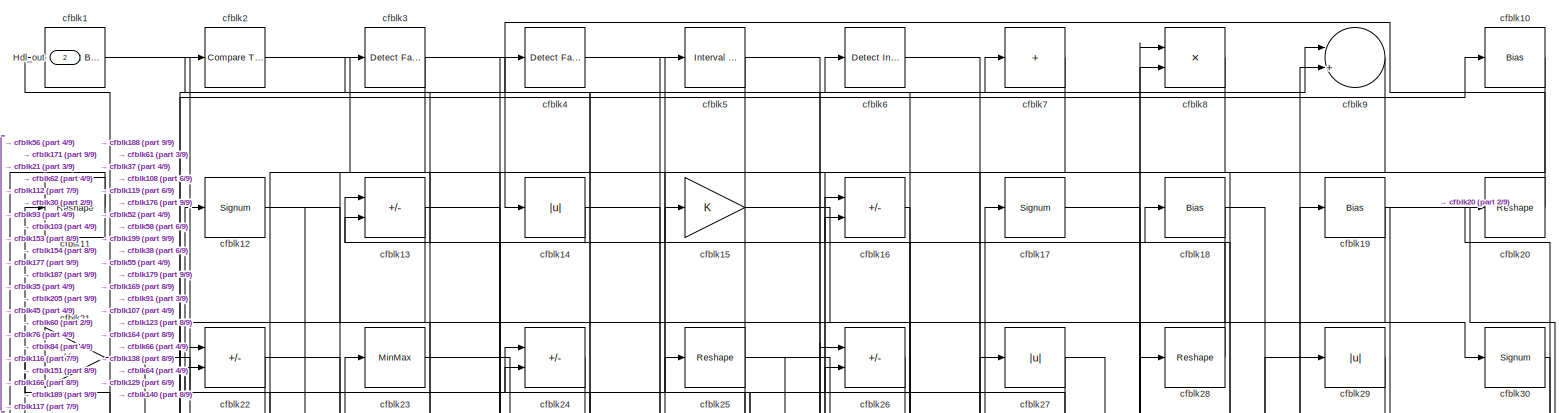
[diagram: root canvas - part 1/9, full width, top band]
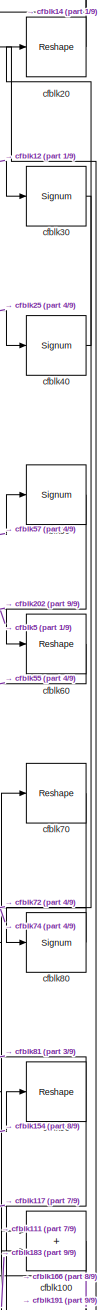
[diagram: root canvas - part 2/9, top right region]
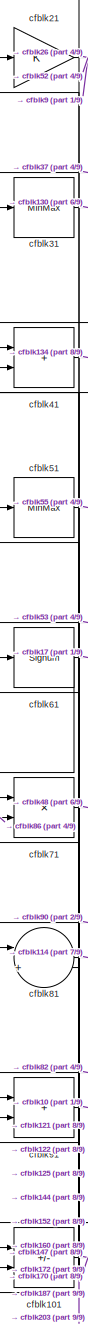
[diagram: root canvas - part 3/9, top left region]
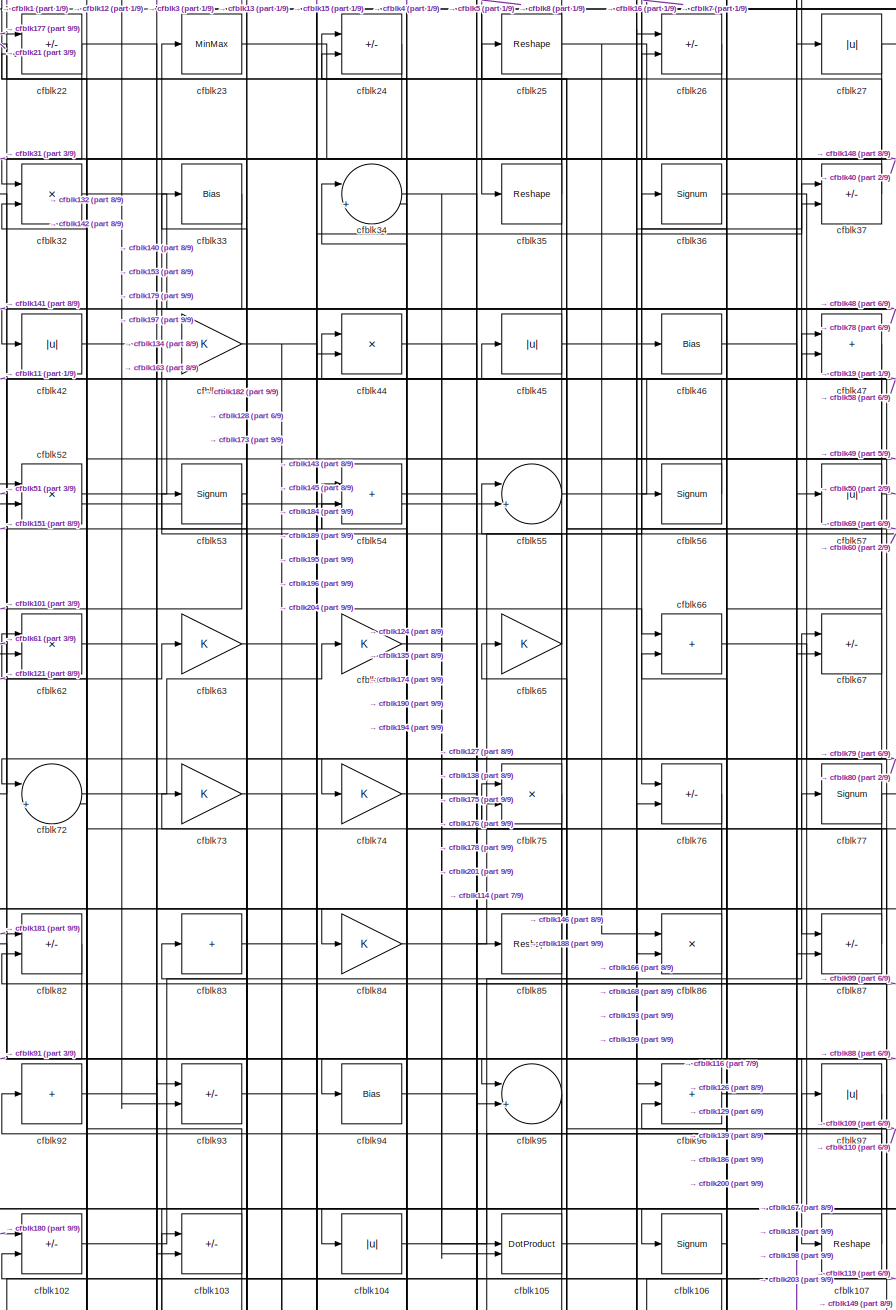
[diagram: root canvas - part 4/9, top center region]
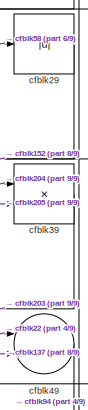
[diagram: root canvas - part 5/9, top right region]
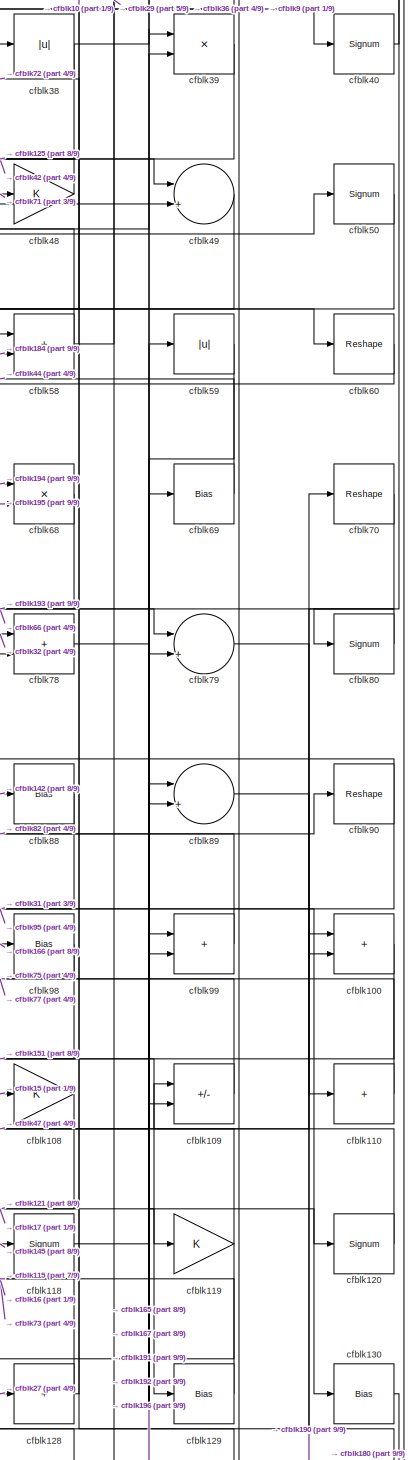
[diagram: root canvas - part 6/9, middle right region]
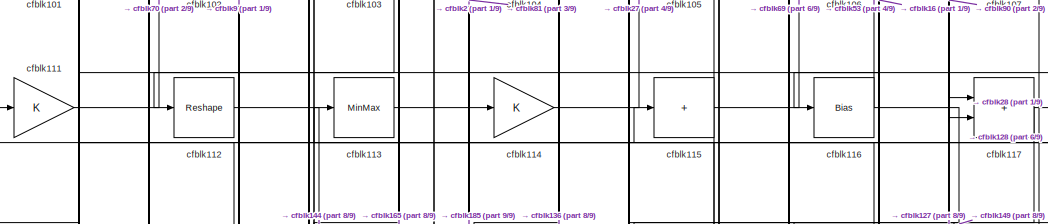
[diagram: root canvas - part 7/9, central region]
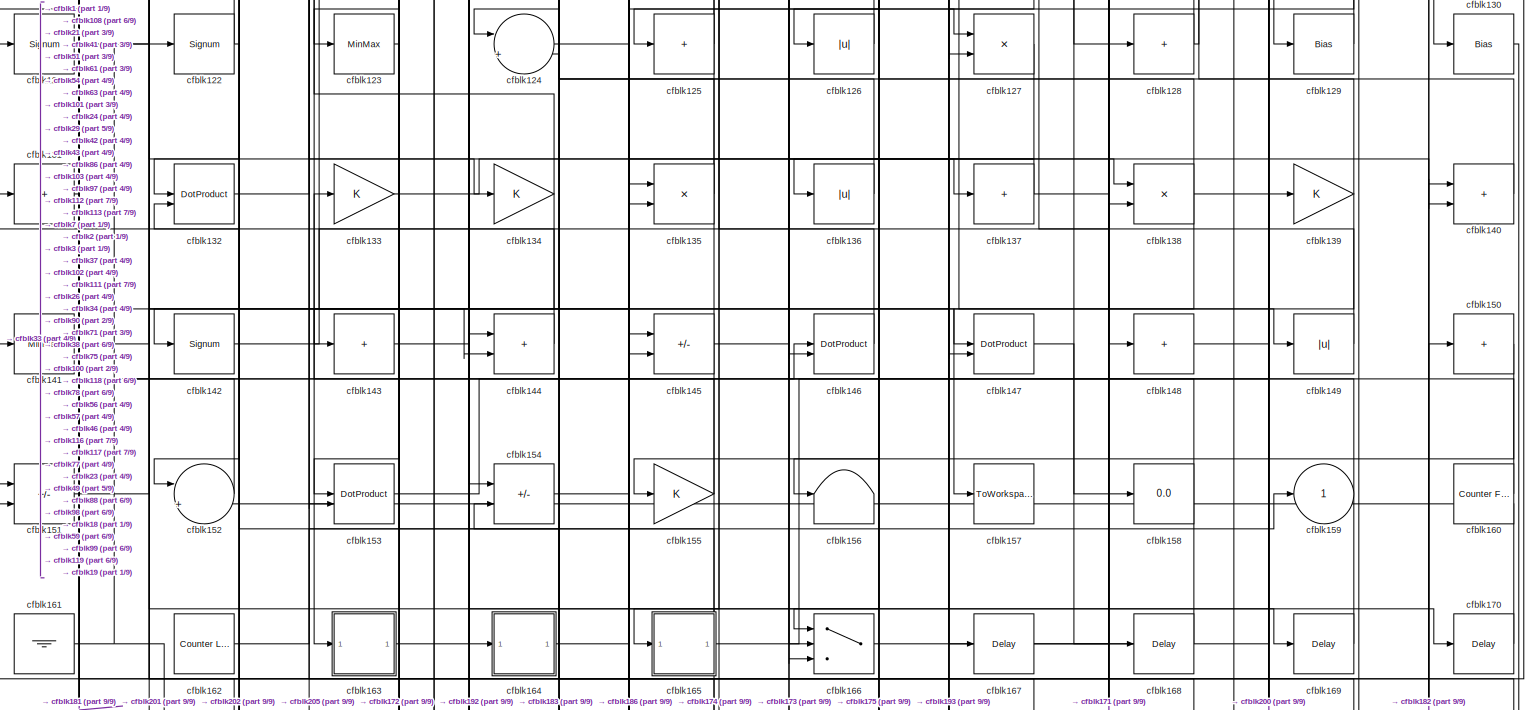
[diagram: root canvas - part 8/9, full width, bottom band]
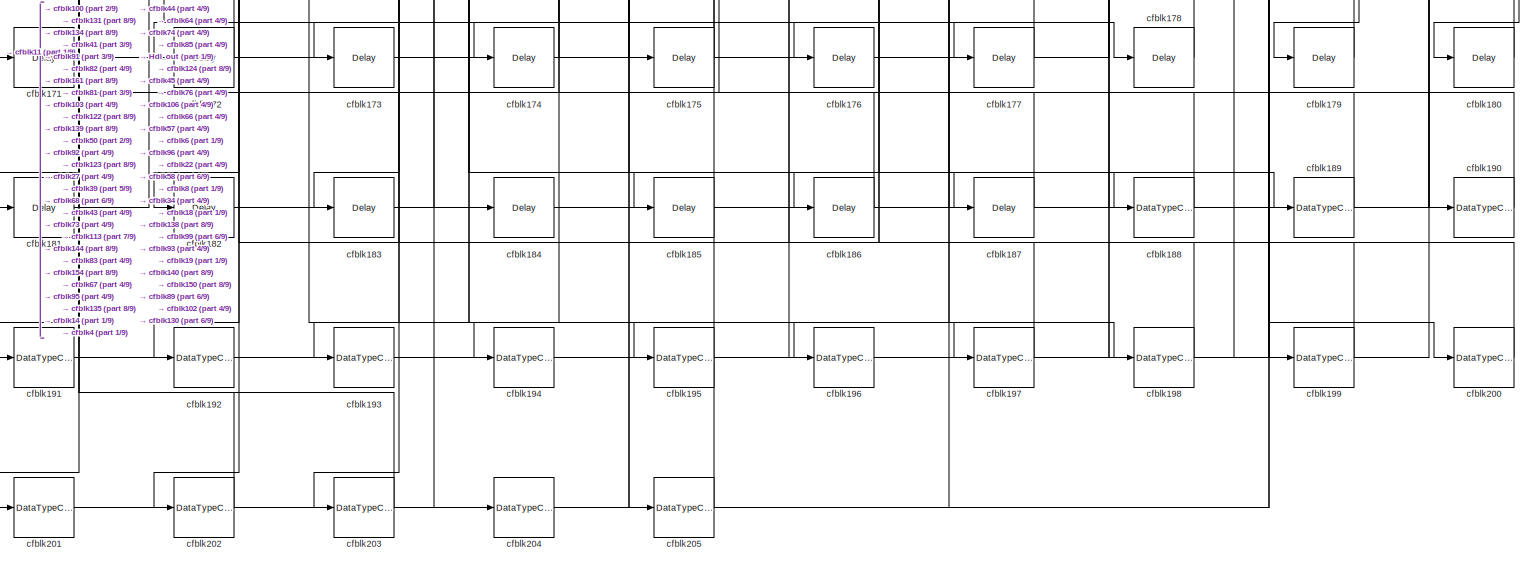
[diagram: root canvas - part 9/9, full width, bottom band]
MODEL slx_56539f601b3c
KIND model
CONFIG AbsTol = auto
CONFIG EnableMultiTasking = off
CONFIG FixedStep = auto
CONFIG MaxStep = auto
CONFIG MinStep = auto
CONFIG RelTol = 1e-3
CONFIG SampleTimeConstraint = Unconstrained
CONFIG SolverName = VariableStepAuto
CONFIG StartTime = 0.0
CONFIG StopTime = 10.0
BLOCK [Outport] Hdl_out
  OutDataTypeStr = uint8
  Port = 2
BLOCK [Reference] cfblk1  REF=simulink/Logic and Bit
Operations/Extract Bits
  LibrarySourceBlock = hdlsllib/Logic and Bit\nOperations/Extract Bits
  SourceBlock = simulink/Logic and Bit\nOperations/Extract Bits
  SourceType = Extract Bits
BLOCK [Bias] cfblk10
  Bias = 0.0
  SaturateOnIntegerOverflow = off
BLOCK [Sum] cfblk100
  IconShape = rectangular
  OutDataTypeStr = uint8
BLOCK [Sum] cfblk101
  IconShape = rectangular
  Inputs = +-
  OutDataTypeStr = uint8
BLOCK [Sum] cfblk102
  IconShape = rectangular
  Inputs = +-
  OutDataTypeStr = uint8
BLOCK [Sum] cfblk103
  IconShape = rectangular
  Inputs = +-
  OutDataTypeStr = uint8
BLOCK [Abs] cfblk104
  OutDataTypeStr = uint8
  SaturateOnIntegerOverflow = off
BLOCK [DotProduct] cfblk105
  OutDataTypeStr = uint8
BLOCK [Signum] cfblk106
BLOCK [Reshape] cfblk107
BLOCK [Gain] cfblk108
  OutDataTypeStr = uint8
BLOCK [Sum] cfblk109
  IconShape = rectangular
  Inputs = +-
  OutDataTypeStr = uint8
BLOCK [Reshape] cfblk11
BLOCK [Sum] cfblk110
  IconShape = rectangular
  Inputs = +
  OutDataTypeStr = uint8
BLOCK [Gain] cfblk111
  OutDataTypeStr = uint8
BLOCK [Reshape] cfblk112
BLOCK [MinMax] cfblk113
  OutDataTypeStr = uint8
BLOCK [Gain] cfblk114
  OutDataTypeStr = uint8
BLOCK [Sum] cfblk115
  IconShape = rectangular
  Inputs = +
  OutDataTypeStr = uint8
BLOCK [Bias] cfblk116
  Bias = 0.0
  SaturateOnIntegerOverflow = off
BLOCK [Sum] cfblk117
  IconShape = rectangular
  OutDataTypeStr = uint8
BLOCK [Signum] cfblk118
BLOCK [Gain] cfblk119
  OutDataTypeStr = uint8
BLOCK [Signum] cfblk12
BLOCK [Signum] cfblk120
BLOCK [Signum] cfblk121
BLOCK [Signum] cfblk122
BLOCK [MinMax] cfblk123
  OutDataTypeStr = uint8
BLOCK [Sum] cfblk124
  Inputs = |++
  OutDataTypeStr = uint8
BLOCK [Sum] cfblk125
  IconShape = rectangular
  Inputs = +
  OutDataTypeStr = uint8
BLOCK [Abs] cfblk126
  OutDataTypeStr = uint8
  SaturateOnIntegerOverflow = off
BLOCK [Product] cfblk127
  Inputs = */
  OutDataTypeStr = uint8
  RndMeth = Zero
  SaturateOnIntegerOverflow = on
BLOCK [Sum] cfblk128
  IconShape = rectangular
  Inputs = +
  OutDataTypeStr = uint8
BLOCK [Bias] cfblk129
  Bias = 0.0
  SaturateOnIntegerOverflow = off
BLOCK [Sum] cfblk13
  IconShape = rectangular
  Inputs = +-
  OutDataTypeStr = uint8
BLOCK [Bias] cfblk130
  Bias = 0.0
  SaturateOnIntegerOverflow = off
BLOCK [Sum] cfblk131
  IconShape = rectangular
  Inputs = +
  OutDataTypeStr = uint8
BLOCK [DotProduct] cfblk132
  OutDataTypeStr = uint8
BLOCK [Gain] cfblk133
  OutDataTypeStr = uint8
BLOCK [Gain] cfblk134
  OutDataTypeStr = uint8
BLOCK [Product] cfblk135
  Inputs = */
  OutDataTypeStr = uint8
  RndMeth = Zero
  SaturateOnIntegerOverflow = on
BLOCK [Abs] cfblk136
  OutDataTypeStr = uint8
  SaturateOnIntegerOverflow = off
BLOCK [Sum] cfblk137
  IconShape = rectangular
  Inputs = +
  OutDataTypeStr = uint8
BLOCK [Product] cfblk138
  Inputs = */
  OutDataTypeStr = uint8
  RndMeth = Zero
  SaturateOnIntegerOverflow = on
BLOCK [Gain] cfblk139
  OutDataTypeStr = uint8
BLOCK [Abs] cfblk14
  OutDataTypeStr = uint8
  SaturateOnIntegerOverflow = off
BLOCK [Sum] cfblk140
  IconShape = rectangular
  OutDataTypeStr = uint8
BLOCK [MinMax] cfblk141
  OutDataTypeStr = uint8
BLOCK [Signum] cfblk142
BLOCK [Sum] cfblk143
  IconShape = rectangular
  Inputs = +
  OutDataTypeStr = uint8
BLOCK [Sum] cfblk144
  IconShape = rectangular
  OutDataTypeStr = uint8
BLOCK [Sum] cfblk145
  IconShape = rectangular
  Inputs = +-
  OutDataTypeStr = uint8
BLOCK [DotProduct] cfblk146
  OutDataTypeStr = uint8
BLOCK [DotProduct] cfblk147
  OutDataTypeStr = uint8
BLOCK [Sum] cfblk148
  IconShape = rectangular
  Inputs = +
  OutDataTypeStr = uint8
BLOCK [Abs] cfblk149
  OutDataTypeStr = uint8
  SaturateOnIntegerOverflow = off
BLOCK [Gain] cfblk15
  OutDataTypeStr = uint8
BLOCK [Sum] cfblk150
  IconShape = rectangular
  Inputs = +
  OutDataTypeStr = uint8
BLOCK [Sum] cfblk151
  IconShape = rectangular
  Inputs = +-
  OutDataTypeStr = uint8
BLOCK [Sum] cfblk152
  Inputs = |++
  OutDataTypeStr = uint8
BLOCK [DotProduct] cfblk153
  OutDataTypeStr = uint8
BLOCK [Sum] cfblk154
  IconShape = rectangular
  Inputs = +-
  OutDataTypeStr = uint8
BLOCK [Gain] cfblk155
  OutDataTypeStr = uint8
BLOCK [Terminator] cfblk156
BLOCK [ToWorkspace] cfblk157
  MaxDataPoints = inf
  SampleTime = -1
  SaveFormat = Timeseries
  VariableName = simout
BLOCK [Display] cfblk158
  Decimation = 1
BLOCK [Outport] cfblk159
  OutDataTypeStr = uint8
  VectorParamsAs1DForOutWhenUnconnected = off
BLOCK [Sum] cfblk16
  IconShape = rectangular
  Inputs = +-
  OutDataTypeStr = uint8
BLOCK [Reference] cfblk160  REF=hdlsllib/Sources/Counter
Free-Running
  SourceBlock = hdlsllib/Sources/Counter\nFree-Running
  SourceType = Counter Free-Running
BLOCK [Ground] cfblk161
BLOCK [Reference] cfblk162  REF=hdlsllib/Sources/Counter
Limited
  SourceBlock = hdlsllib/Sources/Counter\nLimited
  SourceType = Counter Limited
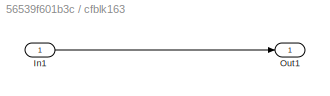
BLOCK [SubSystem] cfblk163
  LibrarySourceBlock = hdlsllib/Ports &\nSubsystems/Subsystem
BLOCK [Inport] cfblk163/In1
BLOCK [Outport] cfblk163/Out1
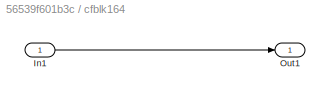
BLOCK [SubSystem] cfblk164
  LibrarySourceBlock = hdlsllib/Ports &\nSubsystems/Subsystem
BLOCK [Inport] cfblk164/In1
BLOCK [Outport] cfblk164/Out1
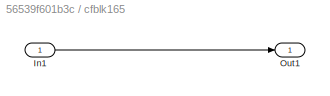
BLOCK [SubSystem] cfblk165
  LibrarySourceBlock = hdlsllib/Ports &\nSubsystems/Subsystem
BLOCK [Inport] cfblk165/In1
BLOCK [Outport] cfblk165/Out1
BLOCK [Switch] cfblk166
  InputSameDT = off
  OutDataTypeStr = uint8
  SaturateOnIntegerOverflow = off
BLOCK [Delay] cfblk167
  InputPortMap = u0
  SampleTime = 1
BLOCK [Delay] cfblk168
  InputPortMap = u0
  SampleTime = 1
BLOCK [Delay] cfblk169
  InputPortMap = u0
  SampleTime = 1
BLOCK [Signum] cfblk17
BLOCK [Delay] cfblk170
  InputPortMap = u0
  SampleTime = 1
BLOCK [Delay] cfblk171
  InputPortMap = u0
  SampleTime = 1
BLOCK [Delay] cfblk172
  InputPortMap = u0
  SampleTime = 1
BLOCK [Delay] cfblk173
  InputPortMap = u0
  SampleTime = 1
BLOCK [Delay] cfblk174
  InputPortMap = u0
  SampleTime = 1
BLOCK [Delay] cfblk175
  InputPortMap = u0
  SampleTime = 1
BLOCK [Delay] cfblk176
  InputPortMap = u0
  SampleTime = 1
BLOCK [Delay] cfblk177
  InputPortMap = u0
  SampleTime = 1
BLOCK [Delay] cfblk178
  InputPortMap = u0
  SampleTime = 1
BLOCK [Delay] cfblk179
  InputPortMap = u0
  SampleTime = 1
BLOCK [Bias] cfblk18
  Bias = 0.0
  SaturateOnIntegerOverflow = off
BLOCK [Delay] cfblk180
  InputPortMap = u0
  SampleTime = 1
BLOCK [Delay] cfblk181
  InputPortMap = u0
  SampleTime = 1
BLOCK [Delay] cfblk182
  InputPortMap = u0
  SampleTime = 1
BLOCK [Delay] cfblk183
  InputPortMap = u0
  SampleTime = 1
BLOCK [Delay] cfblk184
  InputPortMap = u0
  SampleTime = 1
BLOCK [Delay] cfblk185
  InputPortMap = u0
  SampleTime = 1
BLOCK [Delay] cfblk186
  InputPortMap = u0
  SampleTime = 1
BLOCK [Delay] cfblk187
  InputPortMap = u0
  SampleTime = 1
BLOCK [DataTypeConversion] cfblk188
  OutDataTypeStr = uint8
  RndMeth = Floor
  SaturateOnIntegerOverflow = off
BLOCK [DataTypeConversion] cfblk189
  OutDataTypeStr = uint8
  RndMeth = Floor
  SaturateOnIntegerOverflow = off
BLOCK [Bias] cfblk19
  Bias = 0.0
  SaturateOnIntegerOverflow = off
BLOCK [DataTypeConversion] cfblk190
  OutDataTypeStr = uint8
  RndMeth = Floor
  SaturateOnIntegerOverflow = off
BLOCK [DataTypeConversion] cfblk191
  OutDataTypeStr = uint8
  RndMeth = Floor
  SaturateOnIntegerOverflow = off
BLOCK [DataTypeConversion] cfblk192
  OutDataTypeStr = uint8
  RndMeth = Floor
  SaturateOnIntegerOverflow = off
BLOCK [DataTypeConversion] cfblk193
  OutDataTypeStr = uint8
  RndMeth = Floor
  SaturateOnIntegerOverflow = off
BLOCK [DataTypeConversion] cfblk194
  OutDataTypeStr = uint8
  RndMeth = Floor
  SaturateOnIntegerOverflow = off
BLOCK [DataTypeConversion] cfblk195
  OutDataTypeStr = uint8
  RndMeth = Floor
  SaturateOnIntegerOverflow = off
BLOCK [DataTypeConversion] cfblk196
  OutDataTypeStr = uint8
  RndMeth = Floor
  SaturateOnIntegerOverflow = off
BLOCK [DataTypeConversion] cfblk197
  OutDataTypeStr = uint8
  RndMeth = Floor
  SaturateOnIntegerOverflow = off
BLOCK [DataTypeConversion] cfblk198
  OutDataTypeStr = uint8
  RndMeth = Floor
  SaturateOnIntegerOverflow = off
BLOCK [DataTypeConversion] cfblk199
  OutDataTypeStr = uint8
  RndMeth = Floor
  SaturateOnIntegerOverflow = off
BLOCK [Reference] cfblk2  REF=hdlsllib/Logic and Bit
Operations/Compare
To Constant
  SourceBlock = hdlsllib/Logic and Bit\nOperations/Compare\nTo Constant
  SourceType = Compare To Constant
BLOCK [Reshape] cfblk20
BLOCK [DataTypeConversion] cfblk200
  OutDataTypeStr = uint8
  RndMeth = Floor
  SaturateOnIntegerOverflow = off
BLOCK [DataTypeConversion] cfblk201
  OutDataTypeStr = uint8
  RndMeth = Floor
  SaturateOnIntegerOverflow = off
BLOCK [DataTypeConversion] cfblk202
  OutDataTypeStr = uint8
  RndMeth = Floor
  SaturateOnIntegerOverflow = off
BLOCK [DataTypeConversion] cfblk203
  OutDataTypeStr = uint8
  RndMeth = Floor
  SaturateOnIntegerOverflow = off
BLOCK [DataTypeConversion] cfblk204
  OutDataTypeStr = uint8
  RndMeth = Floor
  SaturateOnIntegerOverflow = off
BLOCK [DataTypeConversion] cfblk205
  OutDataTypeStr = uint8
  RndMeth = Floor
  SaturateOnIntegerOverflow = off
BLOCK [Gain] cfblk21
  OutDataTypeStr = uint8
BLOCK [Sum] cfblk22
  IconShape = rectangular
  Inputs = +-
  OutDataTypeStr = uint8
BLOCK [MinMax] cfblk23
  OutDataTypeStr = uint8
BLOCK [Sum] cfblk24
  IconShape = rectangular
  Inputs = +-
  OutDataTypeStr = uint8
BLOCK [Reshape] cfblk25
BLOCK [Sum] cfblk26
  IconShape = rectangular
  Inputs = +-
  OutDataTypeStr = uint8
BLOCK [Abs] cfblk27
  OutDataTypeStr = uint8
  SaturateOnIntegerOverflow = off
BLOCK [Reshape] cfblk28
BLOCK [Abs] cfblk29
  OutDataTypeStr = uint8
  SaturateOnIntegerOverflow = off
BLOCK [Reference] cfblk3  REF=hdlsllib/Logic and Bit
Operations/Detect Fall
Negative
  SourceBlock = hdlsllib/Logic and Bit\nOperations/Detect Fall\nNegative
  SourceType = Detect Fall Negative
BLOCK [Signum] cfblk30
BLOCK [MinMax] cfblk31
  OutDataTypeStr = uint8
BLOCK [Product] cfblk32
  Inputs = */
  OutDataTypeStr = uint8
  RndMeth = Zero
  SaturateOnIntegerOverflow = on
BLOCK [Bias] cfblk33
  Bias = 0.0
  SaturateOnIntegerOverflow = off
BLOCK [Sum] cfblk34
  Inputs = |++
  OutDataTypeStr = uint8
BLOCK [Reshape] cfblk35
BLOCK [Signum] cfblk36
BLOCK [Sum] cfblk37
  IconShape = rectangular
  Inputs = +-
  OutDataTypeStr = uint8
BLOCK [Abs] cfblk38
  OutDataTypeStr = uint8
  SaturateOnIntegerOverflow = off
BLOCK [Product] cfblk39
  Inputs = */
  OutDataTypeStr = uint8
  RndMeth = Zero
  SaturateOnIntegerOverflow = on
BLOCK [Reference] cfblk4  REF=hdlsllib/Logic and Bit
Operations/Detect Fall
Negative
  SourceBlock = hdlsllib/Logic and Bit\nOperations/Detect Fall\nNegative
  SourceType = Detect Fall Negative
BLOCK [Signum] cfblk40
BLOCK [Sum] cfblk41
  IconShape = rectangular
  OutDataTypeStr = uint8
BLOCK [Abs] cfblk42
  OutDataTypeStr = uint8
  SaturateOnIntegerOverflow = off
BLOCK [Gain] cfblk43
  OutDataTypeStr = uint8
BLOCK [Product] cfblk44
  Inputs = */
  OutDataTypeStr = uint8
  RndMeth = Zero
  SaturateOnIntegerOverflow = on
BLOCK [Abs] cfblk45
  OutDataTypeStr = uint8
  SaturateOnIntegerOverflow = off
BLOCK [Bias] cfblk46
  Bias = 0.0
  SaturateOnIntegerOverflow = off
BLOCK [Sum] cfblk47
  IconShape = rectangular
  OutDataTypeStr = uint8
BLOCK [Gain] cfblk48
  OutDataTypeStr = uint8
BLOCK [Sum] cfblk49
  Inputs = |++
  OutDataTypeStr = uint8
BLOCK [Reference] cfblk5  REF=hdlsllib/Logic and Bit
Operations/Interval Test
  SourceBlock = hdlsllib/Logic and Bit\nOperations/Interval Test
  SourceType = Interval Test
BLOCK [Signum] cfblk50
BLOCK [MinMax] cfblk51
  OutDataTypeStr = uint8
BLOCK [Product] cfblk52
  Inputs = */
  OutDataTypeStr = uint8
  RndMeth = Zero
  SaturateOnIntegerOverflow = on
BLOCK [Signum] cfblk53
BLOCK [Sum] cfblk54
  IconShape = rectangular
  OutDataTypeStr = uint8
BLOCK [Sum] cfblk55
  Inputs = |++
  OutDataTypeStr = uint8
BLOCK [Signum] cfblk56
BLOCK [Abs] cfblk57
  OutDataTypeStr = uint8
  SaturateOnIntegerOverflow = off
BLOCK [Sum] cfblk58
  IconShape = rectangular
  OutDataTypeStr = uint8
BLOCK [Abs] cfblk59
  OutDataTypeStr = uint8
  SaturateOnIntegerOverflow = off
BLOCK [Reference] cfblk6  REF=simulink/Logic and Bit
Operations/Detect
Increase
  LibrarySourceBlock = hdlsllib/Logic and Bit\nOperations/Detect\nIncrease
  SourceBlock = simulink/Logic and Bit\nOperations/Detect\nIncrease
  SourceType = Detect Increase
BLOCK [Reshape] cfblk60
BLOCK [Signum] cfblk61
BLOCK [Product] cfblk62
  Inputs = */
  OutDataTypeStr = uint8
  RndMeth = Zero
  SaturateOnIntegerOverflow = on
BLOCK [Gain] cfblk63
  OutDataTypeStr = uint8
BLOCK [Gain] cfblk64
  OutDataTypeStr = uint8
BLOCK [Gain] cfblk65
  OutDataTypeStr = uint8
BLOCK [Sum] cfblk66
  IconShape = rectangular
  OutDataTypeStr = uint8
BLOCK [Sum] cfblk67
  IconShape = rectangular
  Inputs = +-
  OutDataTypeStr = uint8
BLOCK [Product] cfblk68
  Inputs = */
  OutDataTypeStr = uint8
  RndMeth = Zero
  SaturateOnIntegerOverflow = on
BLOCK [Bias] cfblk69
  Bias = 0.0
  SaturateOnIntegerOverflow = off
BLOCK [Sum] cfblk7
  IconShape = rectangular
  Inputs = +
  OutDataTypeStr = uint8
BLOCK [Reshape] cfblk70
BLOCK [Product] cfblk71
  Inputs = */
  OutDataTypeStr = uint8
  RndMeth = Zero
  SaturateOnIntegerOverflow = on
BLOCK [Sum] cfblk72
  Inputs = |++
  OutDataTypeStr = uint8
BLOCK [Gain] cfblk73
  OutDataTypeStr = uint8
BLOCK [Gain] cfblk74
  OutDataTypeStr = uint8
BLOCK [Product] cfblk75
  Inputs = */
  OutDataTypeStr = uint8
  RndMeth = Zero
  SaturateOnIntegerOverflow = on
BLOCK [Sum] cfblk76
  IconShape = rectangular
  Inputs = +-
  OutDataTypeStr = uint8
BLOCK [Signum] cfblk77
BLOCK [Sum] cfblk78
  IconShape = rectangular
  OutDataTypeStr = uint8
BLOCK [Sum] cfblk79
  Inputs = |++
  OutDataTypeStr = uint8
BLOCK [Product] cfblk8
  Inputs = */
  OutDataTypeStr = uint8
  RndMeth = Zero
  SaturateOnIntegerOverflow = on
BLOCK [Signum] cfblk80
BLOCK [Sum] cfblk81
  Inputs = |++
  OutDataTypeStr = uint8
BLOCK [Sum] cfblk82
  IconShape = rectangular
  Inputs = +-
  OutDataTypeStr = uint8
BLOCK [Sum] cfblk83
  IconShape = rectangular
  Inputs = +
  OutDataTypeStr = uint8
BLOCK [Gain] cfblk84
  OutDataTypeStr = uint8
BLOCK [Reshape] cfblk85
BLOCK [Product] cfblk86
  Inputs = */
  OutDataTypeStr = uint8
  RndMeth = Zero
  SaturateOnIntegerOverflow = on
BLOCK [Sum] cfblk87
  IconShape = rectangular
  Inputs = +-
  OutDataTypeStr = uint8
BLOCK [Bias] cfblk88
  Bias = 0.0
  SaturateOnIntegerOverflow = off
BLOCK [Sum] cfblk89
  Inputs = |++
  OutDataTypeStr = uint8
BLOCK [Sum] cfblk9
  Inputs = |++
  OutDataTypeStr = uint8
BLOCK [Reshape] cfblk90
BLOCK [Sum] cfblk91
  IconShape = rectangular
  OutDataTypeStr = uint8
BLOCK [Sum] cfblk92
  IconShape = rectangular
  Inputs = +
  OutDataTypeStr = uint8
BLOCK [Sum] cfblk93
  IconShape = rectangular
  Inputs = +-
  OutDataTypeStr = uint8
BLOCK [Bias] cfblk94
  Bias = 0.0
  SaturateOnIntegerOverflow = off
BLOCK [Sum] cfblk95
  Inputs = |++
  OutDataTypeStr = uint8
BLOCK [Sum] cfblk96
  IconShape = rectangular
  OutDataTypeStr = uint8
BLOCK [Abs] cfblk97
  OutDataTypeStr = uint8
  SaturateOnIntegerOverflow = off
BLOCK [Bias] cfblk98
  Bias = 0.0
  SaturateOnIntegerOverflow = off
BLOCK [Sum] cfblk99
  IconShape = rectangular
  OutDataTypeStr = uint8
NET cfblk100:1 -> cfblk166:3, cfblk191:1
NET cfblk101:1 -> cfblk147:2, cfblk170:1
LINE cfblk102:1 -> cfblk67:1
NET cfblk103:1 -> cfblk182:1, cfblk32:2
LINE cfblk104:1 -> cfblk46:1
LINE cfblk105:1 -> cfblk37:1
LINE cfblk106:1 -> cfblk186:1
LINE cfblk107:1 -> cfblk92:1
LINE cfblk108:1 -> cfblk121:1
LINE cfblk109:1 -> cfblk75:2
LINE cfblk10:1 -> cfblk58:1
LINE cfblk110:1 -> cfblk77:1
LINE cfblk111:1 -> cfblk70:1
LINE cfblk112:1 -> cfblk144:2
LINE cfblk113:1 -> cfblk185:1
LINE cfblk114:1 -> cfblk27:1
LINE cfblk115:1 -> cfblk69:1
NET cfblk116:1 -> cfblk149:1, cfblk53:1
NET cfblk117:1 -> cfblk127:2, cfblk28:1
LINE cfblk118:1 -> cfblk120:1
NET cfblk119:1 -> cfblk165:1, cfblk47:1
LINE cfblk11:1 -> cfblk171:1
LINE cfblk120:1 -> cfblk109:1
NET cfblk121:1 -> cfblk41:1, cfblk63:1
NET cfblk122:1 -> cfblk101:1, cfblk192:1
LINE cfblk123:1 -> cfblk183:1
LINE cfblk124:1 -> cfblk135:1
LINE cfblk125:1 -> cfblk71:1
LINE cfblk126:1 -> cfblk54:2
NET cfblk127:1 -> cfblk146:2, cfblk156:1
NET cfblk128:1 -> cfblk115:1, cfblk38:1, cfblk72:2
NET cfblk129:1 -> cfblk16:2, cfblk73:1
NET cfblk12:1 -> cfblk30:1, cfblk93:2
LINE cfblk130:1 -> cfblk180:1
LINE cfblk131:1 -> cfblk201:1
LINE cfblk132:1 -> cfblk43:1
LINE cfblk133:1 -> cfblk137:1
NET cfblk134:1 -> cfblk103:1, cfblk181:1
LINE cfblk135:1 -> cfblk102:2
LINE cfblk136:1 -> cfblk111:1
NET cfblk137:1 -> cfblk136:1, cfblk49:2
NET cfblk138:1 -> cfblk157:1, cfblk200:1, cfblk2:1
NET cfblk139:1 -> cfblk172:1, cfblk56:1
NET cfblk13:1 -> cfblk62:2, cfblk66:1
LINE cfblk140:1 -> cfblk18:1
LINE cfblk141:1 -> cfblk147:1
LINE cfblk142:1 -> cfblk88:1
LINE cfblk143:1 -> cfblk37:2
LINE cfblk144:1 -> cfblk61:1
NET cfblk145:1 -> cfblk118:1, cfblk78:2
LINE cfblk146:1 -> cfblk75:1
LINE cfblk147:1 -> cfblk158:1
LINE cfblk148:1 -> cfblk139:1
LINE cfblk149:1 -> cfblk97:1
NET cfblk14:1 -> cfblk13:1, cfblk187:1
LINE cfblk150:1 -> cfblk155:1
LINE cfblk151:1 -> cfblk54:1
LINE cfblk152:1 -> cfblk21:1
LINE cfblk153:1 -> cfblk146:1
LINE cfblk154:1 -> cfblk90:1
LINE cfblk155:1 -> cfblk133:1
LINE cfblk15:1 -> cfblk108:1
LINE cfblk160:1 -> cfblk51:1
NET cfblk161:1 -> cfblk122:1, cfblk205:1
LINE cfblk162:1 -> cfblk159:1
LINE cfblk163/In1:1 -> cfblk163/Out1:1
LINE cfblk163:1 -> cfblk169:1
LINE cfblk164/In1:1 -> cfblk164/Out1:1
LINE cfblk164:1 -> cfblk145:1
LINE cfblk165/In1:1 -> cfblk165/Out1:1
NET cfblk165:1 -> cfblk113:1, cfblk132:2, cfblk59:1
LINE cfblk166:1 -> cfblk98:1
LINE cfblk167:1 -> cfblk99:2
LINE cfblk168:1 -> cfblk26:1
LINE cfblk169:1 -> cfblk1:1
LINE cfblk16:1 -> cfblk116:1
LINE cfblk170:1 -> cfblk152:2
LINE cfblk171:1 -> cfblk138:2
LINE cfblk172:1 -> cfblk81:2
LINE cfblk173:1 -> cfblk135:2
LINE cfblk174:1 -> cfblk154:2
LINE cfblk175:1 -> cfblk124:2
LINE cfblk176:1 -> cfblk8:1
LINE cfblk177:1 -> cfblk22:1
LINE cfblk178:1 -> cfblk34:1
LINE cfblk179:1 -> cfblk93:1
LINE cfblk17:1 -> cfblk119:1
LINE cfblk180:1 -> cfblk102:1
LINE cfblk181:1 -> cfblk82:1
LINE cfblk182:1 -> cfblk140:1
LINE cfblk183:1 -> cfblk100:1
LINE cfblk184:1 -> cfblk58:2
LINE cfblk185:1 -> cfblk67:2
LINE cfblk186:1 -> cfblk144:1
LINE cfblk187:1 -> cfblk91:2
LINE cfblk188:1 -> cfblk45:1
LINE cfblk189:1 -> cfblk6:1
NET cfblk18:1 -> cfblk153:1, cfblk199:1
LINE cfblk190:1 -> cfblk34:2
LINE cfblk191:1 -> cfblk89:1
LINE cfblk192:1 -> cfblk89:2
NET cfblk193:1 -> cfblk150:1, cfblk76:2
LINE cfblk194:1 -> cfblk68:1
LINE cfblk195:1 -> cfblk68:2
LINE cfblk196:1 -> cfblk99:1
LINE cfblk197:1 -> cfblk83:1
NET cfblk198:1 -> cfblk22:2, cfblk66:2
LINE cfblk199:1 -> cfblk96:1
NET cfblk19:1 -> cfblk151:1, cfblk166:1, cfblk179:1
LINE cfblk1:1 -> cfblk107:1
LINE cfblk200:1 -> cfblk96:2
LINE cfblk201:1 -> cfblk85:1
LINE cfblk202:1 -> cfblk131:1
NET cfblk203:1 -> cfblk41:2, cfblk57:1
LINE cfblk204:1 -> cfblk39:1
NET cfblk205:1 -> Hdl_out:1, cfblk39:2
LINE cfblk20:1 -> cfblk14:1
NET cfblk21:1 -> cfblk26:2, cfblk52:1, cfblk9:1
NET cfblk22:1 -> cfblk49:1, cfblk52:2
LINE cfblk23:1 -> cfblk148:1
LINE cfblk24:1 -> cfblk132:1
NET cfblk25:1 -> cfblk40:1, cfblk86:1
LINE cfblk26:1 -> cfblk124:1
NET cfblk27:1 -> cfblk128:1, cfblk173:1, cfblk32:1, cfblk87:2
NET cfblk28:1 -> cfblk13:2, cfblk3:1
LINE cfblk29:1 -> cfblk152:1
NET cfblk2:1 -> cfblk117:1, cfblk154:1
LINE cfblk30:1 -> cfblk80:1
LINE cfblk31:1 -> cfblk130:1
LINE cfblk32:1 -> cfblk78:1
LINE cfblk33:1 -> cfblk141:1
NET cfblk34:1 -> cfblk105:2, cfblk138:1
LINE cfblk35:1 -> cfblk12:1
LINE cfblk36:1 -> cfblk129:1
NET cfblk37:1 -> cfblk31:1, cfblk5:1
NET cfblk38:1 -> cfblk125:1, cfblk9:2
LINE cfblk39:1 -> cfblk203:1
NET cfblk3:1 -> cfblk103:2, cfblk164:1
LINE cfblk40:1 -> cfblk20:1
LINE cfblk41:1 -> cfblk134:1
LINE cfblk42:1 -> cfblk140:2
NET cfblk43:1 -> cfblk184:1, cfblk189:1
NET cfblk44:1 -> cfblk105:1, cfblk178:1
LINE cfblk45:1 -> cfblk7:1
LINE cfblk46:1 -> cfblk167:1
LINE cfblk47:1 -> cfblk106:1
LINE cfblk48:1 -> cfblk42:1
LINE cfblk49:1 -> cfblk94:1
LINE cfblk4:1 -> cfblk177:1
LINE cfblk50:1 -> cfblk202:1
LINE cfblk51:1 -> cfblk55:2
LINE cfblk52:1 -> cfblk8:2
NET cfblk53:1 -> cfblk101:2, cfblk33:1
LINE cfblk54:1 -> cfblk127:1
LINE cfblk55:1 -> cfblk19:1
LINE cfblk56:1 -> cfblk11:1
NET cfblk57:1 -> cfblk126:1, cfblk47:2, cfblk50:1
NET cfblk58:1 -> cfblk29:1, cfblk36:1
LINE cfblk59:1 -> cfblk109:2
LINE cfblk5:1 -> cfblk60:1
LINE cfblk60:1 -> cfblk55:1
NET cfblk61:1 -> cfblk17:1, cfblk71:2, cfblk86:2
LINE cfblk62:1 -> cfblk87:1
NET cfblk63:1 -> cfblk143:1, cfblk145:2
NET cfblk64:1 -> cfblk176:1, cfblk4:1
LINE cfblk65:1 -> cfblk23:1
LINE cfblk66:1 -> cfblk79:1
NET cfblk67:1 -> cfblk194:1, cfblk24:1
LINE cfblk68:1 -> cfblk193:1
LINE cfblk69:1 -> cfblk44:1
LINE cfblk6:1 -> cfblk188:1
LINE cfblk70:1 -> cfblk100:2
LINE cfblk71:1 -> cfblk48:1
LINE cfblk72:1 -> cfblk64:1
NET cfblk73:1 -> cfblk195:1, cfblk204:1
LINE cfblk74:1 -> cfblk175:1
LINE cfblk75:1 -> cfblk84:1
LINE cfblk76:1 -> cfblk104:1
NET cfblk77:1 -> cfblk166:2, cfblk168:1
LINE cfblk78:1 -> cfblk79:2
LINE cfblk79:1 -> cfblk110:1
NET cfblk7:1 -> cfblk123:1, cfblk76:1
NET cfblk80:1 -> cfblk72:1, cfblk74:1
LINE cfblk81:1 -> cfblk114:1
LINE cfblk82:1 -> cfblk91:1
LINE cfblk83:1 -> cfblk196:1
LINE cfblk84:1 -> cfblk16:1
NET cfblk85:1 -> cfblk24:2, cfblk25:1
NET cfblk86:1 -> cfblk142:1, cfblk153:2, cfblk62:1
LINE cfblk87:1 -> cfblk65:1
LINE cfblk88:1 -> cfblk95:1
LINE cfblk89:1 -> cfblk190:1
LINE cfblk8:1 -> cfblk35:1
NET cfblk90:1 -> cfblk117:2, cfblk81:1
LINE cfblk91:1 -> cfblk10:1
LINE cfblk92:1 -> cfblk197:1
NET cfblk93:1 -> cfblk15:1, cfblk44:2
LINE cfblk94:1 -> cfblk95:2
LINE cfblk95:1 -> cfblk174:1
LINE cfblk96:1 -> cfblk198:1
LINE cfblk97:1 -> cfblk163:1
LINE cfblk98:1 -> cfblk151:2
LINE cfblk99:1 -> cfblk82:2
LINE cfblk9:1 -> cfblk112:1
note: NET lines group one-source signal fan-out (src -> all destinations, sorted); 1:1 wires keep LINE
